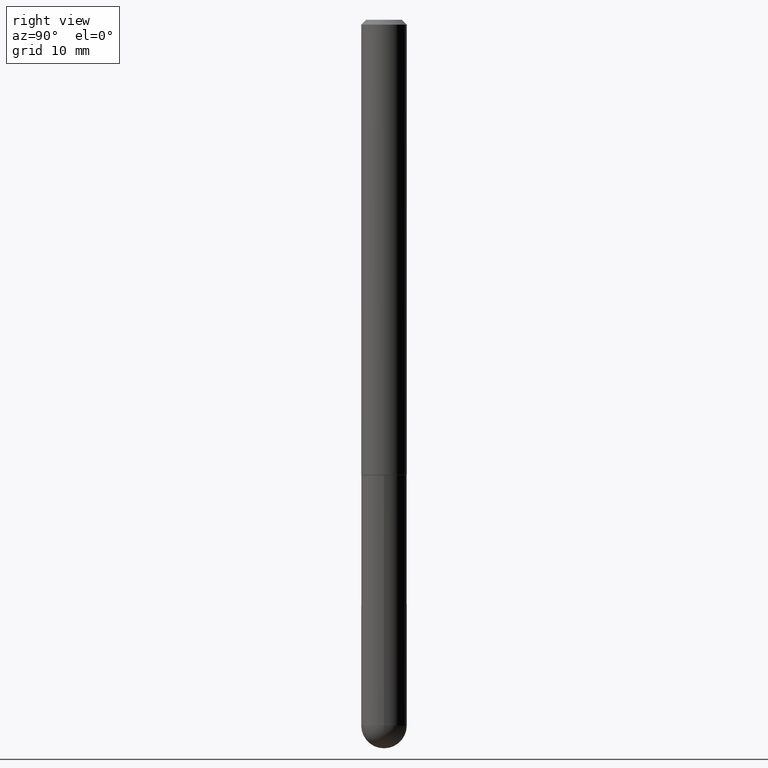
[diagram: clean part render]
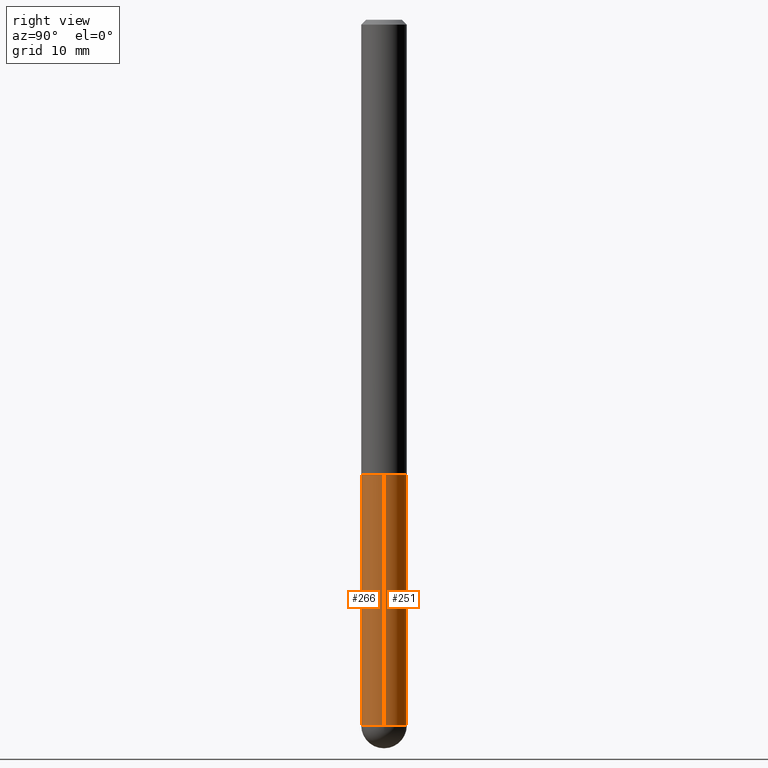
[diagram: same view with one multi-face feature highlighted, each face labeled with its STEP entity id]
A machine part, right view. The highlighted faces form ONE feature: a constant-radius fillet chain: 2 tangent blend faces with common blend radius 2.3812 mm. The faces share edges in the B-rep.
Their STEP definitions:
[1] entity #266 (Cylinder):
#8 = CARTESIAN_POINT ( 'NONE',  ( 4.585254011597131119E-29, -6.546527510330898707E-15, -1.875000000000000000 ) ) ;
#11 = CIRCLE ( 'NONE', #192, 0.09374999999999998612 ) ;
#12 = DIRECTION ( 'NONE',  ( 1.000000000000000000, -6.982962677686261189E-15, 0.000000000000000000 ) ) ;
#15 = EDGE_LOOP ( 'NONE', ( #345, #296, #24, #259, #21 ) ) ;
#21 = ORIENTED_EDGE ( 'NONE', *, *, #148, .F. ) ;
#24 = ORIENTED_EDGE ( 'NONE', *, *, #321, .T. ) ;
#30 = CARTESIAN_POINT ( 'NONE',  ( -0.09375000000000001388, -7.680688760896801533E-15, -1.875000000000000000 ) ) ;
#44 = CARTESIAN_POINT ( 'NONE',  ( -6.661338147750251947E-16, -0.09375000000001050549, -2.906249999999999556 ) ) ;
#49 = CARTESIAN_POINT ( 'NONE',  ( 0.000000000000000000, 0.000000000000000000, 0.000000000000000000 ) ) ;
#58 = AXIS2_PLACEMENT_3D ( 'NONE', #311, #342, #142 ) ;
#63 = DIRECTION ( 'NONE',  ( -2.445468806185136877E-29, 3.491481338843145188E-15, 1.000000000000000000 ) ) ;
#86 = AXIS2_PLACEMENT_3D ( 'NONE', #49, #203, #212 ) ;
#108 = VERTEX_POINT ( 'NONE', #44 ) ;
#125 = EDGE_CURVE ( 'NONE', #191, #365, #170, .T. ) ;
#128 = LINE ( 'NONE', #361, #205 ) ;
#137 = DIRECTION ( 'NONE',  ( 1.000000000000000000, -6.982962677686263555E-15, 0.000000000000000000 ) ) ;
#142 = DIRECTION ( 'NONE',  ( 1.000000000000000000, -6.982962677686263555E-15, 0.000000000000000000 ) ) ;
#148 = EDGE_CURVE ( 'NONE', #365, #204, #310, .T. ) ;
#154 = AXIS2_PLACEMENT_3D ( 'NONE', #8, #201, #12 ) ;
#166 = CARTESIAN_POINT ( 'NONE',  ( 0.09375000000000001388, -7.201180261363985422E-15, -1.875000000000000000 ) ) ;
#170 = LINE ( 'NONE', #295, #281 ) ;
#191 = VERTEX_POINT ( 'NONE', #329 ) ;
#192 = AXIS2_PLACEMENT_3D ( 'NONE', #276, #275, #137 ) ;
#201 = DIRECTION ( 'NONE',  ( -2.445468806185136597E-29, 3.491481338843145583E-15, 1.000000000000000000 ) ) ;
#203 = DIRECTION ( 'NONE',  ( -2.445468806185136597E-29, 3.491481338843145583E-15, 1.000000000000000000 ) ) ;
#204 = VERTEX_POINT ( 'NONE', #166 ) ;
#205 = VECTOR ( 'NONE', #63, 39.37007874015748143 ) ;
#207 = EDGE_CURVE ( 'NONE', #244, #204, #128, .T. ) ;
#210 = CYLINDRICAL_SURFACE ( 'NONE', #86, 0.09374999999999998612 ) ;
#212 = DIRECTION ( 'NONE',  ( 1.000000000000000000, -6.982962677686266711E-15, 4.876176775795935793E-29 ) ) ;
#244 = VERTEX_POINT ( 'NONE', #406 ) ;
#245 = FACE_OUTER_BOUND ( 'NONE', #15, .T. ) ;
#246 = CIRCLE ( 'NONE', #58, 0.09374999999999998612 ) ;
#259 = ORIENTED_EDGE ( 'NONE', *, *, #207, .T. ) ;
#264 = DIRECTION ( 'NONE',  ( -2.445468806185136877E-29, 3.491481338843145188E-15, 1.000000000000000000 ) ) ;
#266 = ADVANCED_FACE ( 'NONE', ( #245 ), #210, .T. ) ;
#275 = DIRECTION ( 'NONE',  ( -2.445468806185136597E-29, 3.491481338843145583E-15, 1.000000000000000000 ) ) ;
#276 = CARTESIAN_POINT ( 'NONE',  ( 7.107143717975553234E-29, -1.014711764101289221E-14, -2.906250000000000000 ) ) ;
#281 = VECTOR ( 'NONE', #264, 39.37007874015748143 ) ;
#295 = CARTESIAN_POINT ( 'NONE',  ( -0.09374999999999998612, 6.661338147750938256E-16, -4.611501647113973295E-30 ) ) ;
#296 = ORIENTED_EDGE ( 'NONE', *, *, #366, .T. ) ;
#310 = CIRCLE ( 'NONE', #154, 0.09375000000000001388 ) ;
#311 = CARTESIAN_POINT ( 'NONE',  ( 7.107143717975553234E-29, -1.014711764101289221E-14, -2.906250000000000000 ) ) ;
#321 = EDGE_CURVE ( 'NONE', #108, #244, #246, .T. ) ;
#329 = CARTESIAN_POINT ( 'NONE',  ( -0.09374999999999998612, -7.680688760896803110E-15, -2.906250000000000000 ) ) ;
#342 = DIRECTION ( 'NONE',  ( -2.445468806185136597E-29, 3.491481338843145583E-15, 1.000000000000000000 ) ) ;
#345 = ORIENTED_EDGE ( 'NONE', *, *, #125, .F. ) ;
#361 = CARTESIAN_POINT ( 'NONE',  ( 0.09374999999999998612, -6.546527510330874055E-16, 4.571415727308689105E-30 ) ) ;
#365 = VERTEX_POINT ( 'NONE', #30 ) ;
#366 = EDGE_CURVE ( 'NONE', #191, #108, #11, .T. ) ;
#406 = CARTESIAN_POINT ( 'NONE',  ( 0.09374999999999998612, -9.001475326704983750E-15, -2.906250000000000000 ) ) ;
[2] entity #251 (Cylinder):
#17 = AXIS2_PLACEMENT_3D ( 'NONE', #51, #74, #346 ) ;
#20 = DIRECTION ( 'NONE',  ( -2.445468806185136597E-29, 3.491481338843145583E-15, 1.000000000000000000 ) ) ;
#30 = CARTESIAN_POINT ( 'NONE',  ( -0.09375000000000001388, -7.680688760896801533E-15, -1.875000000000000000 ) ) ;
#38 = EDGE_CURVE ( 'NONE', #244, #146, #265, .T. ) ;
#51 = CARTESIAN_POINT ( 'NONE',  ( 4.585254011597131119E-29, -6.546527510330898707E-15, -1.875000000000000000 ) ) ;
#63 = DIRECTION ( 'NONE',  ( -2.445468806185136877E-29, 3.491481338843145188E-15, 1.000000000000000000 ) ) ;
#74 = DIRECTION ( 'NONE',  ( -2.445468806185136597E-29, 3.491481338843145583E-15, 1.000000000000000000 ) ) ;
#93 = AXIS2_PLACEMENT_3D ( 'NONE', #241, #138, #377 ) ;
#97 = ORIENTED_EDGE ( 'NONE', *, *, #207, .F. ) ;
#105 = FACE_OUTER_BOUND ( 'NONE', #134, .T. ) ;
#125 = EDGE_CURVE ( 'NONE', #191, #365, #170, .T. ) ;
#128 = LINE ( 'NONE', #361, #205 ) ;
#134 = EDGE_LOOP ( 'NONE', ( #358, #141, #211, #97, #398 ) ) ;
#138 = DIRECTION ( 'NONE',  ( -2.445468806185136597E-29, 3.491481338843145583E-15, 1.000000000000000000 ) ) ;
#141 = ORIENTED_EDGE ( 'NONE', *, *, #125, .T. ) ;
#143 = CYLINDRICAL_SURFACE ( 'NONE', #93, 0.09374999999999998612 ) ;
#146 = VERTEX_POINT ( 'NONE', #254 ) ;
#166 = CARTESIAN_POINT ( 'NONE',  ( 0.09375000000000001388, -7.201180261363985422E-15, -1.875000000000000000 ) ) ;
#170 = LINE ( 'NONE', #295, #281 ) ;
#191 = VERTEX_POINT ( 'NONE', #329 ) ;
#199 = DIRECTION ( 'NONE',  ( -2.445468806185136597E-29, 3.491481338843145583E-15, 1.000000000000000000 ) ) ;
#204 = VERTEX_POINT ( 'NONE', #166 ) ;
#205 = VECTOR ( 'NONE', #63, 39.37007874015748143 ) ;
#207 = EDGE_CURVE ( 'NONE', #244, #204, #128, .T. ) ;
#211 = ORIENTED_EDGE ( 'NONE', *, *, #317, .F. ) ;
#234 = CARTESIAN_POINT ( 'NONE',  ( 7.107143717975553234E-29, -1.014711764101289221E-14, -2.906250000000000000 ) ) ;
#237 = EDGE_CURVE ( 'NONE', #146, #191, #391, .T. ) ;
#241 = CARTESIAN_POINT ( 'NONE',  ( 0.000000000000000000, 0.000000000000000000, 0.000000000000000000 ) ) ;
#243 = DIRECTION ( 'NONE',  ( 1.000000000000000000, -6.982962677686263555E-15, 0.000000000000000000 ) ) ;
#244 = VERTEX_POINT ( 'NONE', #406 ) ;
#251 = ADVANCED_FACE ( 'NONE', ( #105 ), #143, .T. ) ;
#254 = CARTESIAN_POINT ( 'NONE',  ( 6.546527510331577127E-16, 0.09374999999998974431, -2.906250000000000888 ) ) ;
#257 = DIRECTION ( 'NONE',  ( 1.000000000000000000, -6.982962677686263555E-15, 0.000000000000000000 ) ) ;
#264 = DIRECTION ( 'NONE',  ( -2.445468806185136877E-29, 3.491481338843145188E-15, 1.000000000000000000 ) ) ;
#265 = CIRCLE ( 'NONE', #407, 0.09374999999999998612 ) ;
#281 = VECTOR ( 'NONE', #264, 39.37007874015748143 ) ;
#295 = CARTESIAN_POINT ( 'NONE',  ( -0.09374999999999998612, 6.661338147750938256E-16, -4.611501647113973295E-30 ) ) ;
#317 = EDGE_CURVE ( 'NONE', #204, #365, #383, .T. ) ;
#329 = CARTESIAN_POINT ( 'NONE',  ( -0.09374999999999998612, -7.680688760896803110E-15, -2.906250000000000000 ) ) ;
#346 = DIRECTION ( 'NONE',  ( 1.000000000000000000, -6.982962677686261189E-15, 0.000000000000000000 ) ) ;
#356 = AXIS2_PLACEMENT_3D ( 'NONE', #234, #20, #243 ) ;
#358 = ORIENTED_EDGE ( 'NONE', *, *, #237, .T. ) ;
#361 = CARTESIAN_POINT ( 'NONE',  ( 0.09374999999999998612, -6.546527510330874055E-16, 4.571415727308689105E-30 ) ) ;
#363 = CARTESIAN_POINT ( 'NONE',  ( 7.107143717975553234E-29, -1.014711764101289221E-14, -2.906250000000000000 ) ) ;
#365 = VERTEX_POINT ( 'NONE', #30 ) ;
#377 = DIRECTION ( 'NONE',  ( 1.000000000000000000, -6.982962677686266711E-15, 4.876176775795935793E-29 ) ) ;
#383 = CIRCLE ( 'NONE', #17, 0.09375000000000001388 ) ;
#391 = CIRCLE ( 'NONE', #356, 0.09374999999999998612 ) ;
#398 = ORIENTED_EDGE ( 'NONE', *, *, #38, .T. ) ;
#406 = CARTESIAN_POINT ( 'NONE',  ( 0.09374999999999998612, -9.001475326704983750E-15, -2.906250000000000000 ) ) ;
#407 = AXIS2_PLACEMENT_3D ( 'NONE', #363, #199, #257 ) ;